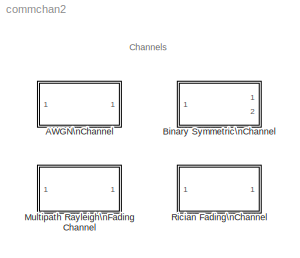
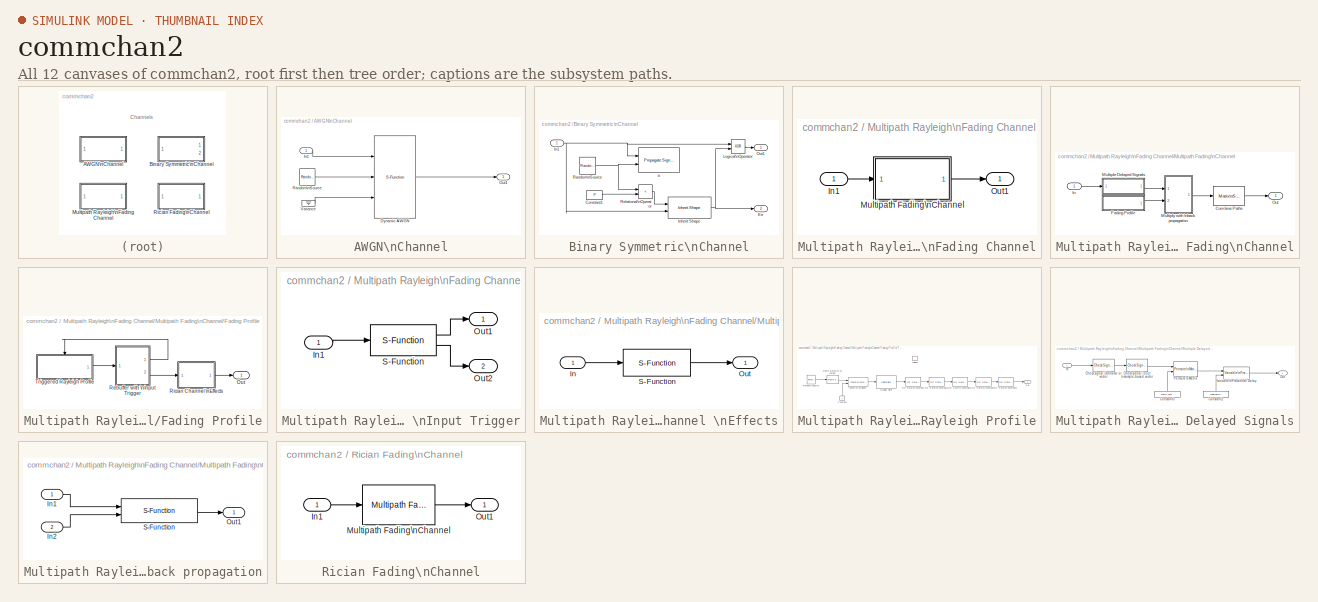
[diagram: thumbnail index - all 12 canvases of the model, root first then tree order]
MODEL commchan2
KIND library
BLOCK [SubSystem] AWGN\nChannel
  MaskCallbackString = |commblkawgnchan2(gcb,'Mode');|||||||
  MaskDescription = Add white Gaussian noise to the input signal. The input and output signals can be real or complex. This block supports multichannel input and output signals as well as frame-based processing.\n\nWhen using either of the variance modes with complex inputs, the variance values are equally divided among the real and imaginary components of the input signal.
  MaskDisplay = plot(-10,-10,110, 110,[05 15 10 10 05 10 18 14 13 7.5 13 41 44 47 50 53 57\n59 100-[13 7.5 13 14 18 10 5 10 10 15 5]],[70 70 70 85 92 85 79 82 90 88.5\n90 90 87 93 87 93 87 90 90 88.5 90 82 79 85 92 85 70 70 70]);\ndisp('AWGN');\nport_label('input',s.i1,s.i1s);\nport_label('input',s.i2,s.i2s);\nport_label('output',s.o1,s.o1s);\n
  MaskEnableString = on,on,on,on,off,on,on,on,off
  MaskHelp = helpview(commbhelp)
  MaskIconFrame = on
  MaskIconOpaque = on
  MaskIconRotate = none
  MaskIconUnits = autoscale
  MaskInitialization = [mode,s]=commblkawgnchan2(gcb,'init');\nif ~isempty(s.status) error(s.status); end
  MaskPromptString = Initial seed:|Mode:|Eb/No (dB):|Es/No (dB):|SNR (dB):|Number of bits per symbol:|Input signal power (watts):|Symbol period (s):|Variance:
  MaskSelfModifiable = on
  MaskStyleString = edit,popup(Signal to noise ratio  (Eb/No)|Signal to noise ratio  (Es/No)|Signal to noise ratio  (SNR)|Variance from mask|Variance from port),edit,edit,edit,edit,edit,edit,edit
  MaskTabNameString = ,,,,,,,,
  MaskToolTipString = on,on,on,on,on,on,on,on,on
  MaskTunableValueString = on,off,on,on,on,on,on,on,on
  MaskType = AWGN Channel
  MaskValueString = 67|Signal to noise ratio  (Eb/No)|10|10|10|1|1|1|1
  MaskVarAliasString = ,,,,,,,,
  MaskVariables = seed=@1;noiseMode=@2;EbNodB=@3;EsNodB=@4;SNRdB=@5;bitsPerSym=@6;Ps=@7;Tsym=@8;variance=@9;
  MaskVisibilityString = on,on,on,off,off,on,on,on,off
  MinAlgLoopOccurrences = off
  Ports = [1, 1]
  PropExecContextAcrossSSBoundary = on
  RTWSystemCode = Auto
  TreatAsAtomicUnit = off
BLOCK [S-Function] AWGN\nChannel/Dynamic AWGN
  FunctionName = scomawgnchan2
  MaskIconFrame = on
  MaskIconOpaque = on
  MaskIconRotate = none
  MaskIconUnits = autoscale
  Parameters = noiseMode, EbNodB, EsNodB, SNRdB, bitsPerSym, Ps, Tsym, variance
  Ports = [3, 1]
BLOCK [Inport] AWGN\nChannel/In1
  IconDisplay = Port number
  LatchInput = off
BLOCK [Outport] AWGN\nChannel/Out1
  BusOutputAsStruct = off
  IconDisplay = Port number
BLOCK [Reference] AWGN\nChannel/Random\nSource  REF=dspsrcs4/Random\nSource
  CltLength = 12
  DataType = Double
  Diagnostics = AllowInheritedTsInSrc
  Inherit = on
  Max = 1
  Mean = 0
  Min = 0
  NormMethod = Ziggurat
  OutComplex = Real
  Ports = [0, 1]
  RepMode = Specify seed
  SampFrame = 1
  SampMode = Discrete
  SampTime = 1
  Seed = seed
  SourceBlock = dspsrcs4/Random\nSource
  SourceType = Random Source
  SrcType = Gaussian
  Var = 1
BLOCK [Ground] AWGN\nChannel/Variance
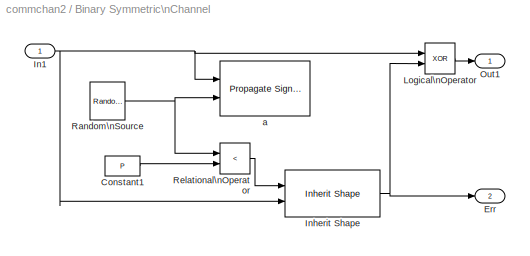
BLOCK [SubSystem] Binary Symmetric\nChannel
  MaskCallbackString = ||
  MaskDescription = Add binary errors to the input signal. The error probability can be a scalar or a vector with the same length as the input vector length.\n\nThe optional second output is the error vector.
  MaskDisplay = plot(0,0,100,100,[05 15 10 10 05 10 18 14 13 7.5 13 41 44 47 50 53 57 59 100-[13 7.5 13 14 18 10 5 10 10 15 5]],[70 70 70 85 92 85 79 82 90 88.5 90 90 87 93 87 93 87 90 90 88.5 90 82 79 85 92 85 70 70 70]);\ndisp('BSC')\nport_label('output',blk_icon.portnum,blk_icon.portlabel);
  MaskEnableString = on,on,on
  MaskHelp = helpview(commbhelp)
  MaskIconFrame = on
  MaskIconOpaque = on
  MaskIconRotate = none
  MaskIconUnits = autoscale
  MaskInitialization = blk_icon = commblkbschan(P,s);
  MaskPromptString = Error probability:|Initial seed:|Output error vector
  MaskSelfModifiable = on
  MaskStyleString = edit,edit,checkbox
  MaskTabNameString = ,,
  MaskToolTipString = on,on,on
  MaskTunableValueString = on,on,off
  MaskType = Binary Symmetric Channel
  MaskValueString = 0.05|71|on
  MaskVarAliasString = ,,
  MaskVariables = P=@1;s=@2;E=@3;
  MaskVisibilityString = on,on,on
  MinAlgLoopOccurrences = off
  Ports = [1, 2]
  PropExecContextAcrossSSBoundary = on
  RTWSystemCode = Auto
  TreatAsAtomicUnit = off
BLOCK [Constant] Binary Symmetric\nChannel/Constant1
  Value = P
BLOCK [Outport] Binary Symmetric\nChannel/Err
  BusOutputAsStruct = off
  IconDisplay = Port number
  Port = 2
BLOCK [Inport] Binary Symmetric\nChannel/In1
  IconDisplay = Port number
  LatchInput = off
BLOCK [Reference] Binary Symmetric\nChannel/Inherit Shape  REF=commblksprivate/Inherit Shape
  Ports = [2, 1]
  SourceBlock = commblksprivate/Inherit Shape
  SourceType = Inherit Shape
BLOCK [Logic] Binary Symmetric\nChannel/Logical\nOperator
  LogicDataType = float('double')
  Operator = XOR
  OutDataTypeMode = Specify via dialog
  Ports = [2, 1]
BLOCK [Outport] Binary Symmetric\nChannel/Out1
  BusOutputAsStruct = off
  IconDisplay = Port number
BLOCK [Reference] Binary Symmetric\nChannel/Random\nSource  REF=dspsrcs4/Random\nSource
  CltLength = 12
  DataType = Double
  Diagnostics = AllowInheritedTsInSrc
  Inherit = on
  Max = 1
  Mean = 0
  Min = 0
  NormMethod = Ziggurat
  OutComplex = Real
  Ports = [0, 1]
  RepMode = Specify seed
  SampFrame = 1
  SampMode = Discrete
  SampTime = 1
  Seed = s
  SourceBlock = dspsrcs4/Random\nSource
  SourceType = Random Source
  SrcType = Uniform
  Var = 1
BLOCK [RelationalOperator] Binary Symmetric\nChannel/Relational\nOperator
  LogicDataType = float('double')
  LogicOutDataTypeMode = Specify via dialog
  Operator = <
BLOCK [Reference] Binary Symmetric\nChannel/a  REF=commblksprivate/Propagate Signal\nAttributes
  Ports = [2]
  SourceBlock = commblksprivate/Propagate Signal\nAttributes
  SourceType = Propagate signal attributes
BLOCK [SubSystem] Multipath Rayleigh\nFading Channel
  MaskCallbackString = |||||
  MaskDescription = Multipath Rayleigh fading channel for complex baseband signals.\n\nMultiplies the input signal with samples of a Rayleigh distributed complex random process. The spectrum of the Rayleigh process is given by the Jakes PSD.\n\nThe number of paths equals the length of either the 'Delay vector' or 'Gain vector' parameters.
  MaskDisplay = plot(0,0,100,100,[05 15 10 10 05 10 18 14 13 7.5 13 41 44 47 50 53 57 59 100-[13 7.5 13 14 18 10 5 10 10 15 5]],[70 70 70 85 92 85 79 82 90 88.5 90 90 87 93 87 93 87 90 90 88.5 90 82 79 85 92 85 70 70 70]);\ndisp('Multipath\\nRayleigh Fading')
  MaskEnableString = on,on,on,on,on,on
  MaskHelp = helpview(commbhelp)
  MaskIconFrame = on
  MaskIconOpaque = on
  MaskIconRotate = none
  MaskIconUnits = autoscale
  MaskInitialization = commblkrayleighchan2(gcb);
  MaskPromptString = Maximum Doppler shift (Hz):|Sample time:|Delay vector (s):|Gain vector (dB):|Normalize gain vector to 0 dB overall gain|Initial seed:
  MaskSelfModifiable = on
  MaskStyleString = edit,edit,edit,edit,checkbox,edit
  MaskTabNameString = ,,,,,
  MaskToolTipString = on,on,on,on,on,on
  MaskTunableValueString = on,on,on,on,on,on
  MaskType = Multipath Rayleigh Fading Channel
  MaskValueString = 40|1e-6|[0 2e-6]|[0 -3]|on|73
  MaskVarAliasString = ,,,,,
  MaskVariables = Fd=@1;simTs=@2;delayVec=@3;gainVecdB=@4;normGain=@5;Seed=@6;
  MaskVisibilityString = on,on,on,on,on,on
  MinAlgLoopOccurrences = off
  Ports = [1, 1]
  PropExecContextAcrossSSBoundary = on
  RTWSystemCode = Auto
  TreatAsAtomicUnit = off
BLOCK [Inport] Multipath Rayleigh\nFading Channel/In1
  IconDisplay = Port number
  LatchInput = off
BLOCK [SubSystem] Multipath Rayleigh\nFading Channel/Multipath Fading\nChannel
  MaskCallbackString = |||||||
  MaskDescription = Multipath fading channel for complex baseband signals.\n\nMultiplies the input signal with samples of a complex random process. The spectrum of the random process is given by the Jakes PSD, where the Doppler frequency parameter determines the maximum Doppler frequency. The K-factor parameter specifies the linear ratio of power in the direct path to the diffuse power. \n\nThe number of paths equals...<+69ch>
  MaskDisplay = plot(0,0,100,100,[05 15 10 10 05 10 18 14 13 7.5 13 41 44 47 50 53 57 59 100-[13 7.5 13 14 18 10 5 10 10 15 5]],[70 70 70 85 92 85 79 82 90 88.5 90 90 87 93 87 93 87 90 90 88.5 90 82 79 85 92 85 70 70 70]);\ndisp('Multipath\\nFading')
  MaskEnableString = on,on,on,on,on,on,on,on
  MaskIconFrame = on
  MaskIconOpaque = on
  MaskIconRotate = none
  MaskIconUnits = autoscale
  MaskInitialization = [ecode,emsg,params] = commblkfadingchan2(gcb,Fd,LOSFd,K,simTs,delayVec,gainVecdB,normGain,Seed);\nif(ecode==1)\n    error(emsg);\nelseif(ecode==2)\n    warning(emsg);\nend;
  MaskPromptString = Doppler frequency (Hz):|Line-of-sight Doppler frequency (Hz):|K-factor:|Sample time (sec):|Delay vector (sec):|Gain vector (dB):|Normalize gain vector to 0 dB overall gain|Initial seed:
  MaskSelfModifiable = on
  MaskStyleString = edit,edit,edit,edit,edit,edit,checkbox,edit
  MaskTabNameString = ,,,,,,,
  MaskToolTipString = on,on,on,on,on,on,on,on
  MaskTunableValueString = on,on,on,on,on,on,on,on
  MaskType = Multipath Fading Channel
  MaskValueString = Fd|0|0|simTs|delayVec|gainVecdB|on|Seed
  MaskVarAliasString = ,,,,,,,
  MaskVariables = Fd=@1;LOSFd=@2;K=@3;simTs=@4;delayVec=@5;gainVecdB=@6;normGain=@7;Seed=@8;
  MaskVisibilityString = on,on,on,on,on,on,on,on
  MinAlgLoopOccurrences = off
  Ports = [1, 1]
  PropExecContextAcrossSSBoundary = on
  RTWSystemCode = Auto
  TreatAsAtomicUnit = off
BLOCK [Reference] Multipath Rayleigh\nFading Channel/Multipath Fading\nChannel/Combine Paths  REF=dspmtrx3/Matrix\nSum
  DialogController = dspDDGCreate
  DialogControllerArgs = DataTag0
  Dim = Rows
  Ports = [1, 1]
  SourceBlock = dspmtrx3/Matrix\nSum
  SourceType = Matrix Sum
  accumFracLength = 30
  accumMode = Inherit via internal rule
  accumWordLength = 32
  additionalParams = off
  allowOverrides = on
  outputFracLength = 15
  outputMode = Same as accumulator
  outputWordLength = 16
  overflowMode = off
  roundingMode = Floor
BLOCK [SubSystem] Multipath Rayleigh\nFading Channel/Multipath Fading\nChannel/Fading Profile
  MaskDisplay = disp('Fading\\nProfile')
  MaskIconFrame = on
  MaskIconOpaque = on
  MaskIconRotate = none
  MaskIconUnits = autoscale
  MinAlgLoopOccurrences = off
  Ports = [0, 1]
  PropExecContextAcrossSSBoundary = on
  RTWSystemCode = Auto
  TreatAsAtomicUnit = off
BLOCK [Outport] Multipath Rayleigh\nFading Channel/Multipath Fading\nChannel/Fading Profile/Out
  BusOutputAsStruct = off
  IconDisplay = Port number
BLOCK [SubSystem] Multipath Rayleigh\nFading Channel/Multipath Fading\nChannel/Fading Profile/Rebuffer with \nInput Trigger
  MaskCallbackString = ||commblktriggeredbuffer(gcb,'InputWidthMode');|||
  MaskDescription = This block inherits the input and output port widths and complexity and the output sample time.  The input must be from a function call subsystem.  The block generates a function call trigger on port 1 when ever data is required.  and outputs the buffered input data on port 2.
  MaskDisplay = disp('Rebuffer\\nwith trigger');\nport_label('input',s.i1,s.i1s);\nport_label('output',s.o1,s.o1s);\nport_label('output',s.o2,s.o2s);
  MaskEnableString = on,on,on,off,on,on
  MaskIconFrame = on
  MaskIconOpaque = on
  MaskIconRotate = none
  MaskIconUnits = autoscale
  MaskInitialization = s = commblktriggeredbuffer(gcb,'init',{});\n
  MaskPromptString = Start delay:|Number of channels:|Input width mode:|Input width (per channel):|Minimum input width (per channel):|Input width step size (per channel):
  MaskSelfModifiable = on
  MaskStyleString = edit,edit,popup(Inherit|Specify|Based on output width),edit,edit,edit
  MaskTabNameString = ,,,,,
  MaskToolTipString = on,on,on,on,on,on
  MaskTunableValueString = off,off,off,off,off,off
  MaskType = Rebuffer with Input Trigger
  MaskValueString = params.startDelay|params.nPaths|Based on output width|params.intFactor|params.intFactor|params.intFactor
  MaskVarAliasString = ,,,,,
  MaskVariables = startSample=@1;numChan=@2;inputWidthMode=@3;inputWidth=@4;inputWidthMin=@5;inputWidthStep=@6;
  MaskVisibilityString = on,on,on,off,on,on
  MinAlgLoopOccurrences = off
  Ports = [1, 2]
  PropExecContextAcrossSSBoundary = on
  RTWSystemCode = Auto
  TreatAsAtomicUnit = off
BLOCK [Inport] Multipath Rayleigh\nFading Channel/Multipath Fading\nChannel/Fading Profile/Rebuffer with \nInput Trigger/In1
  IconDisplay = Port number
  LatchInput = off
BLOCK [Outport] Multipath Rayleigh\nFading Channel/Multipath Fading\nChannel/Fading Profile/Rebuffer with \nInput Trigger/Out1
  BusOutputAsStruct = off
  IconDisplay = Port number
BLOCK [Outport] Multipath Rayleigh\nFading Channel/Multipath Fading\nChannel/Fading Profile/Rebuffer with \nInput Trigger/Out2
  BusOutputAsStruct = off
  IconDisplay = Port number
  Port = 2
BLOCK [S-Function] Multipath Rayleigh\nFading Channel/Multipath Fading\nChannel/Fading Profile/Rebuffer with \nInput Trigger/S-Function
  FunctionName = scomtrigbuff2
  Parameters = startSample, numChan, inputWidthMode, inputWidth, inputWidthMin, inputWidthStep
  Ports = [1, 2]
BLOCK [SubSystem] Multipath Rayleigh\nFading Channel/Multipath Fading\nChannel/Fading Profile/Rician Channel \nEffects
  MaskCallbackString = ||||
  MaskDescription = Add a complex phasor to the unity variance complex input to produce Rician channel effects.  The Doppler frequency parameter determines frequency of the complex phasor.
  MaskDisplay = disp('Rician\\nChannel')
  MaskEnableString = on,on,on,on,on
  MaskIconFrame = on
  MaskIconOpaque = on
  MaskIconRotate = none
  MaskIconUnits = autoscale
  MaskPromptString = Line-of-sight Doppler frequency (Hz):|K-factor|Required output power (Watts):|Sample time (s):|Number of channels:
  MaskStyleString = edit,edit,edit,edit,edit
  MaskTabNameString = ,,,,
  MaskToolTipString = on,on,on,on,on
  MaskTunableValueString = on,on,on,on,on
  MaskType = Ricean Channel Effects
  MaskValueString = params.LOSFd|params.K|params.gainVecLin|simTs|params.nPaths
  MaskVarAliasString = ,,,,
  MaskVariables = Doppler=@1;K=@2;opPower=@3;Ts=@4;numChan=@5;
  MaskVisibilityString = on,on,on,on,on
  MinAlgLoopOccurrences = off
  Ports = [1, 1]
  PropExecContextAcrossSSBoundary = on
  RTWSystemCode = Auto
  TreatAsAtomicUnit = off
BLOCK [Inport] Multipath Rayleigh\nFading Channel/Multipath Fading\nChannel/Fading Profile/Rician Channel \nEffects/In
  IconDisplay = Port number
  LatchInput = off
BLOCK [Outport] Multipath Rayleigh\nFading Channel/Multipath Fading\nChannel/Fading Profile/Rician Channel \nEffects/Out
  BusOutputAsStruct = off
  IconDisplay = Port number
BLOCK [S-Function] Multipath Rayleigh\nFading Channel/Multipath Fading\nChannel/Fading Profile/Rician Channel \nEffects/S-Function
  FunctionName = scomricianlos2
  Parameters = Doppler,K,opPower,Ts,numChan
  Ports = [1, 1]
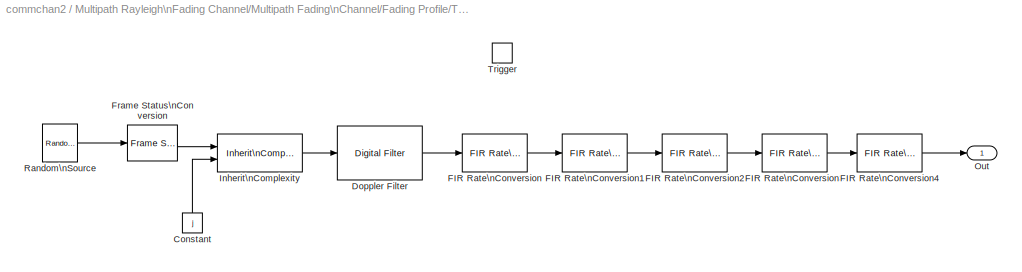
BLOCK [SubSystem] Multipath Rayleigh\nFading Channel/Multipath Fading\nChannel/Fading Profile/Triggered Rayleigh Profile
  MinAlgLoopOccurrences = off
  Ports = [0, 1, 0, 1]
  PropExecContextAcrossSSBoundary = on
  RTWSystemCode = Auto
  TreatAsAtomicUnit = on
BLOCK [Constant] Multipath Rayleigh\nFading Channel/Multipath Fading\nChannel/Fading Profile/Triggered Rayleigh Profile/Constant
  Value = j
BLOCK [Reference] Multipath Rayleigh\nFading Channel/Multipath Fading\nChannel/Fading Profile/Triggered Rayleigh Profile/Doppler Filter  REF=dsparch4/Digital Filter
  AllPoleFiltStruct = Direct form
  BiQuadCoeffs = params.dopplerSos
  CoeffSource = Specify via dialog
  DenCoeffs = [1 0.1]
  FIRFiltStruct = Direct form
  FiltPerSampPopup = One filter per frame
  IC = 0
  ICden = 0
  ICnum = 0
  IIRFiltStruct = Biquad direct form II transposed (SOS)
  LatticeCoeffs = [0.2 0.4]
  NumCoeffs = [1 2]
  Ports = [1, 1]
  SourceBlock = dsparch4/Digital Filter
  SourceType = Digital Filter
  TypePopup = IIR (poles & zeros)
  denIgnore = on
BLOCK [Reference] Multipath Rayleigh\nFading Channel/Multipath Fading\nChannel/Fading Profile/Triggered Rayleigh Profile/FIR Rate\nConversion  REF=dspmlti3/FIR Rate\nConversion
  L = params.interp1
  M = params.decim1
  Ports = [1, 1]
  SourceBlock = dspmlti3/FIR Rate\nConversion
  SourceType = FIR Rate Conversion
  h = params.rc1Num
BLOCK [Reference] Multipath Rayleigh\nFading Channel/Multipath Fading\nChannel/Fading Profile/Triggered Rayleigh Profile/FIR Rate\nConversion1  REF=dspmlti3/FIR Rate\nConversion
  L = params.interp2
  M = params.decim2
  Ports = [1, 1]
  SourceBlock = dspmlti3/FIR Rate\nConversion
  SourceType = FIR Rate Conversion
  h = params.rc2Num
BLOCK [Reference] Multipath Rayleigh\nFading Channel/Multipath Fading\nChannel/Fading Profile/Triggered Rayleigh Profile/FIR Rate\nConversion2  REF=dspmlti3/FIR Rate\nConversion
  L = params.interp3
  M = params.decim3
  Ports = [1, 1]
  SourceBlock = dspmlti3/FIR Rate\nConversion
  SourceType = FIR Rate Conversion
  h = params.rc3Num
BLOCK [Reference] Multipath Rayleigh\nFading Channel/Multipath Fading\nChannel/Fading Profile/Triggered Rayleigh Profile/FIR Rate\nConversion3  REF=dspmlti3/FIR Rate\nConversion
  L = params.interp4
  M = params.decim4
  Ports = [1, 1]
  SourceBlock = dspmlti3/FIR Rate\nConversion
  SourceType = FIR Rate Conversion
  h = params.rc4Num
BLOCK [Reference] Multipath Rayleigh\nFading Channel/Multipath Fading\nChannel/Fading Profile/Triggered Rayleigh Profile/FIR Rate\nConversion4  REF=dspmlti3/FIR Rate\nConversion
  L = params.interp5
  M = params.decim5
  Ports = [1, 1]
  SourceBlock = dspmlti3/FIR Rate\nConversion
  SourceType = FIR Rate Conversion
  h = params.rc5Num
BLOCK [Reference] Multipath Rayleigh\nFading Channel/Multipath Fading\nChannel/Fading Profile/Triggered Rayleigh Profile/Frame Status\nConversion  REF=dspsigattribs/Frame Status\nConversion
  Ports = [1, 1]
  SourceBlock = dspsigattribs/Frame Status\nConversion
  SourceType = Frame Status Conversion
  growRefPort = off
  outframe = Frame-based
BLOCK [Reference] Multipath Rayleigh\nFading Channel/Multipath Fading\nChannel/Fading Profile/Triggered Rayleigh Profile/Inherit\nComplexity  REF=dspsigattribs/Inherit\nComplexity
  Ports = [2, 1]
  SourceBlock = dspsigattribs/Inherit\nComplexity
  SourceType = Inherit Complexity
BLOCK [Outport] Multipath Rayleigh\nFading Channel/Multipath Fading\nChannel/Fading Profile/Triggered Rayleigh Profile/Out
  BusOutputAsStruct = off
  IconDisplay = Port number
BLOCK [Reference] Multipath Rayleigh\nFading Channel/Multipath Fading\nChannel/Fading Profile/Triggered Rayleigh Profile/Random\nSource  REF=dspsrcs4/Random\nSource
  CltLength = 12
  DataType = Double
  Diagnostics = AllowInheritedTsInSrc
  Inherit = on
  Max = 1
  Mean = 0
  Min = 0
  NormMethod = Ziggurat
  OutComplex = Real
  Ports = [0, 1]
  RepMode = Specify seed
  SampFrame = 1
  SampMode = Discrete
  SampTime = 1
  Seed = params.Seed
  SourceBlock = dspsrcs4/Random\nSource
  SourceType = Random Source
  SrcType = Gaussian
  UserData = DataTag1
  UserDataPersistent = on
  Var = 1
BLOCK [TriggerPort] Multipath Rayleigh\nFading Channel/Multipath Fading\nChannel/Fading Profile/Triggered Rayleigh Profile/Trigger
  Ports = []
  TriggerType = function-call
BLOCK [Inport] Multipath Rayleigh\nFading Channel/Multipath Fading\nChannel/In
  IconDisplay = Port number
  LatchInput = off
BLOCK [SubSystem] Multipath Rayleigh\nFading Channel/Multipath Fading\nChannel/Multiple Delayed Signals
  MaskCallbackString = |
  MaskDisplay = disp('Multiple\\ndelayed signals');
  MaskEnableString = on,on
  MaskIconFrame = on
  MaskIconOpaque = on
  MaskIconRotate = none
  MaskIconUnits = autoscale
  MaskInitialization = nPaths = length(delayVector);\nmaxDelay = ceil(max(delayVector))+1;
  MaskPromptString = Path delay vector:|Sample time (sec):
  MaskStyleString = edit,edit
  MaskTabNameString = ,
  MaskToolTipString = on,on
  MaskTunableValueString = on,on
  MaskType = Multiple Delayed Signals
  MaskValueString = params.sampleDelayVec|simTs
  MaskVarAliasString = ,
  MaskVariables = delayVector=@1;Ts=@2;
  MaskVisibilityString = on,on
  MinAlgLoopOccurrences = off
  Ports = [1, 1]
  PropExecContextAcrossSSBoundary = on
  RTWSystemCode = Auto
  TreatAsAtomicUnit = off
BLOCK [Reference] Multipath Rayleigh\nFading Channel/Multipath Fading\nChannel/Multiple Delayed Signals/Check signal is not \nsample-based vector  REF=dspsigattribs/Check Signal\nAttributes
  Complexity = Ignore
  DatatypeCheckMethod = Ignore
  DatatypeGeneral = Boolean
  Dimensions = Scalar (1-D or 2-D)
  DimsCheckMethod = Is not...
  DtypeFixedSpecific = Any fixed-point
  DtypeFloatSpecific = Any floating-point
  DtypeIntSpecific = Any integer
  Frame = Sample-based
  Ports = [1, 1]
  SampleMode = Ignore
  ShowPortLabels = on
  SigAttribCheckMethod = Matches attributes exactly
  SourceBlock = dspsigattribs/Check Signal\nAttributes
  SourceType = Check Signal Attributes
BLOCK [Reference] Multipath Rayleigh\nFading Channel/Multipath Fading\nChannel/Multiple Delayed Signals/Check signal is\nframe or vector  REF=dspsigattribs/Check Signal\nAttributes
  Complexity = Ignore
  DatatypeCheckMethod = Ignore
  DatatypeGeneral = Boolean
  Dimensions = Column vector (2-D) or scalar
  DimsCheckMethod = Is...
  DtypeFixedSpecific = Any fixed-point
  DtypeFloatSpecific = Any floating-point
  DtypeIntSpecific = Any integer
  Frame = Ignore
  Ports = [1, 1]
  SampleMode = Ignore
  ShowPortLabels = on
  SigAttribCheckMethod = Does not match attributes exactly
  SourceBlock = dspsigattribs/Check Signal\nAttributes
  SourceType = Check Signal Attributes
BLOCK [Constant] Multipath Rayleigh\nFading Channel/Multipath Fading\nChannel/Multiple Delayed Signals/Constant2
  Value = [delayVector(:)]'
  VectorParams1D = off
BLOCK [Constant] Multipath Rayleigh\nFading Channel/Multipath Fading\nChannel/Multiple Delayed Signals/Constant3
  Value = ones(1,nPaths)
  VectorParams1D = off
BLOCK [Inport] Multipath Rayleigh\nFading Channel/Multipath Fading\nChannel/Multiple Delayed Signals/In
  IconDisplay = Port number
  LatchInput = off
BLOCK [Outport] Multipath Rayleigh\nFading Channel/Multipath Fading\nChannel/Multiple Delayed Signals/Out
  BusOutputAsStruct = off
  IconDisplay = Port number
BLOCK [Reference] Multipath Rayleigh\nFading Channel/Multipath Fading\nChannel/Multiple Delayed Signals/Permute\nMatrix  REF=dspmtrx3/Permute\nMatrix
  Ports = [2, 1]
  SourceBlock = dspmtrx3/Permute\nMatrix
  SourceType = Permute Matrix
  ZeroOneIdxMode = One-based
  checkDims = off
  errmode = Clip Index
  mode = Columns
BLOCK [Reference] Multipath Rayleigh\nFading Channel/Multipath Fading\nChannel/Multiple Delayed Signals/Variable\nFractional Delay  REF=dspsigops/Variable\nFractional Delay
  L = 6
  Ports = [2, 1]
  R = 10
  SourceBlock = dspsigops/Variable\nFractional Delay
  SourceType = Variable Fractional Delay
  alpha = 1
  dmax = maxDelay
  ic = 0
  mode = FIR Interpolation
BLOCK [SubSystem] Multipath Rayleigh\nFading Channel/Multipath Fading\nChannel/Multiply with \nback propagation
  MaskCallbackString = ||
  MaskDescription = Perform multiplication of the two input signals.  \n\nThe width and complexity of the output and the port not targeted for propagation must be identical. The width and complexity of the port targeted for propagation is set to that of the other input.\n\nThe block sample time is the product of the number of samples per frame and the sample time parameter.
  MaskDisplay = disp('Multiply\\nwith prop');
  MaskEnableString = on,on,on
  MaskIconFrame = on
  MaskIconOpaque = on
  MaskIconRotate = none
  MaskIconUnits = autoscale
  MaskPromptString = Propagation target:|Sample time:|Number of channels:
  MaskStyleString = popup(Input 1|Input 2),edit,edit
  MaskTabNameString = ,,
  MaskToolTipString = on,on,on
  MaskTunableValueString = on,on,on
  MaskType = Multiply with back propagation
  MaskValueString = Input 2|simTs|params.nPaths
  MaskVarAliasString = ,,
  MaskVariables = propTarget=@1;Ts=@2;numChan=@3;
  MaskVisibilityString = on,on,on
  MinAlgLoopOccurrences = off
  Ports = [2, 1]
  PropExecContextAcrossSSBoundary = on
  RTWSystemCode = Auto
  TreatAsAtomicUnit = off
BLOCK [Inport] Multipath Rayleigh\nFading Channel/Multipath Fading\nChannel/Multiply with \nback propagation/In1
  IconDisplay = Port number
  LatchInput = off
BLOCK [Inport] Multipath Rayleigh\nFading Channel/Multipath Fading\nChannel/Multiply with \nback propagation/In2
  IconDisplay = Port number
  LatchInput = off
  Port = 2
BLOCK [Outport] Multipath Rayleigh\nFading Channel/Multipath Fading\nChannel/Multiply with \nback propagation/Out1
  BusOutputAsStruct = off
  IconDisplay = Port number
BLOCK [S-Function] Multipath Rayleigh\nFading Channel/Multipath Fading\nChannel/Multiply with \nback propagation/S-Function
  FunctionName = scommultwithprop2
  Parameters = propTarget, Ts, numChan
  Ports = [2, 1]
BLOCK [Outport] Multipath Rayleigh\nFading Channel/Multipath Fading\nChannel/Out
  BusOutputAsStruct = off
  IconDisplay = Port number
BLOCK [Outport] Multipath Rayleigh\nFading Channel/Out1
  BusOutputAsStruct = off
  IconDisplay = Port number
BLOCK [SubSystem] Rician Fading\nChannel
  MaskCallbackString = |||||
  MaskDescription = Rician fading channel for complex baseband signals.\n\nMultiplies the input signal with samples of a Rician distributed complex random process. The K-factor parameter specifies the linear ratio of power in the direct path to the diffuse power.  The spectrum of the Rician process is given by the Jakes PSD.
  MaskDisplay = plot(0,0,100,100,[05 15 10 10 05 10 18 14 13 7.5 13 41 44 47 50 53 57 59 100-[13 7.5 13 14 18 10 5 10 10 15 5]],[70 70 70 85 92 85 79 82 90 88.5 90 90 87 93 87 93 87 90 90 88.5 90 82 79 85 92 85 70 70 70]);\ndisp('Rician\\nFading')
  MaskEnableString = on,on,on,on,on,on
  MaskHelp = helpview(commbhelp)
  MaskIconFrame = on
  MaskIconOpaque = on
  MaskIconRotate = none
  MaskIconUnits = autoscale
  MaskInitialization = commblkricianchan2(gcb);\n
  MaskPromptString = K-factor:|Maximum Doppler shift (Hz):|Sample time:|Delay (s):|Gain (dB):|Initial seed:
  MaskSelfModifiable = on
  MaskStyleString = edit,edit,edit,edit,edit,edit
  MaskTabNameString = ,,,,,
  MaskToolTipString = on,on,on,on,on,on
  MaskTunableValueString = on,on,on,on,on,on
  MaskType = Rician Fading Channel
  MaskValueString = 1|40|1e-6|0|0|79
  MaskVarAliasString = ,,,,,
  MaskVariables = K=@1;Fd=@2;simTs=@3;delayVec=@4;gainVecdB=@5;Seed=@6;
  MaskVisibilityString = on,on,on,on,on,on
  MinAlgLoopOccurrences = off
  Ports = [1, 1]
  PropExecContextAcrossSSBoundary = on
  RTWSystemCode = Auto
  TreatAsAtomicUnit = off
BLOCK [Inport] Rician Fading\nChannel/In1
  IconDisplay = Port number
  LatchInput = off
BLOCK [Reference] Rician Fading\nChannel/Multipath Fading\nChannel  REF=commchan2/Multipath Rayleigh\nFading Channel/Multipath Fading\nChannel
  Fd = Fd
  K = K
  LOSFd = 0
  Ports = [1, 1]
  Seed = Seed
  ShowPortLabels = on
  SourceBlock = commchan2/Multipath Rayleigh\nFading Channel/Multipath Fading\nChannel
  SourceType = Multipath Fading Channel
  delayVec = delayVec
  gainVecdB = gainVecdB
  normGain = off
  simTs = simTs
BLOCK [Outport] Rician Fading\nChannel/Out1
  BusOutputAsStruct = off
  IconDisplay = Port number
ANNOTATION (root): Channels
LINE AWGN\nChannel/Dynamic AWGN:1 -> AWGN\nChannel/Out1:1
LINE AWGN\nChannel/In1:1 -> AWGN\nChannel/Dynamic AWGN:1
LINE AWGN\nChannel/Random\nSource:1 -> AWGN\nChannel/Dynamic AWGN:2
LINE AWGN\nChannel/Variance:1 -> AWGN\nChannel/Dynamic AWGN:3
LINE Binary Symmetric\nChannel/Constant1:1 -> Binary Symmetric\nChannel/Relational\nOperator:2
NET Binary Symmetric\nChannel/In1:1 -> Binary Symmetric\nChannel/Inherit Shape:2, Binary Symmetric\nChannel/Logical\nOperator:1, Binary Symmetric\nChannel/a:1
NET Binary Symmetric\nChannel/Inherit Shape:1 -> Binary Symmetric\nChannel/Err:1, Binary Symmetric\nChannel/Logical\nOperator:2
LINE Binary Symmetric\nChannel/Logical\nOperator:1 -> Binary Symmetric\nChannel/Out1:1
NET Binary Symmetric\nChannel/Random\nSource:1 -> Binary Symmetric\nChannel/Relational\nOperator:1, Binary Symmetric\nChannel/a:2
LINE Binary Symmetric\nChannel/Relational\nOperator:1 -> Binary Symmetric\nChannel/Inherit Shape:1
LINE Multipath Rayleigh\nFading Channel/In1:1 -> Multipath Rayleigh\nFading Channel/Multipath Fading\nChannel:1
LINE Multipath Rayleigh\nFading Channel/Multipath Fading\nChannel/Combine Paths:1 -> Multipath Rayleigh\nFading Channel/Multipath Fading\nChannel/Out:1
LINE Multipath Rayleigh\nFading Channel/Multipath Fading\nChannel/Fading Profile/Rebuffer with \nInput Trigger/In1:1 -> Multipath Rayleigh\nFading Channel/Multipath Fading\nChannel/Fading Profile/Rebuffer with \nInput Trigger/S-Function:1
LINE Multipath Rayleigh\nFading Channel/Multipath Fading\nChannel/Fading Profile/Rebuffer with \nInput Trigger/S-Function:1 -> Multipath Rayleigh\nFading Channel/Multipath Fading\nChannel/Fading Profile/Rebuffer with \nInput Trigger/Out1:1
LINE Multipath Rayleigh\nFading Channel/Multipath Fading\nChannel/Fading Profile/Rebuffer with \nInput Trigger/S-Function:2 -> Multipath Rayleigh\nFading Channel/Multipath Fading\nChannel/Fading Profile/Rebuffer with \nInput Trigger/Out2:1
LINE Multipath Rayleigh\nFading Channel/Multipath Fading\nChannel/Fading Profile/Rebuffer with \nInput Trigger:1 -> Multipath Rayleigh\nFading Channel/Multipath Fading\nChannel/Fading Profile/Triggered Rayleigh Profile:trigger
LINE Multipath Rayleigh\nFading Channel/Multipath Fading\nChannel/Fading Profile/Rebuffer with \nInput Trigger:2 -> Multipath Rayleigh\nFading Channel/Multipath Fading\nChannel/Fading Profile/Rician Channel \nEffects:1
LINE Multipath Rayleigh\nFading Channel/Multipath Fading\nChannel/Fading Profile/Rician Channel \nEffects/In:1 -> Multipath Rayleigh\nFading Channel/Multipath Fading\nChannel/Fading Profile/Rician Channel \nEffects/S-Function:1
LINE Multipath Rayleigh\nFading Channel/Multipath Fading\nChannel/Fading Profile/Rician Channel \nEffects/S-Function:1 -> Multipath Rayleigh\nFading Channel/Multipath Fading\nChannel/Fading Profile/Rician Channel \nEffects/Out:1
LINE Multipath Rayleigh\nFading Channel/Multipath Fading\nChannel/Fading Profile/Rician Channel \nEffects:1 -> Multipath Rayleigh\nFading Channel/Multipath Fading\nChannel/Fading Profile/Out:1
LINE Multipath Rayleigh\nFading Channel/Multipath Fading\nChannel/Fading Profile/Triggered Rayleigh Profile/Constant:1 -> Multipath Rayleigh\nFading Channel/Multipath Fading\nChannel/Fading Profile/Triggered Rayleigh Profile/Inherit\nComplexity:2
LINE Multipath Rayleigh\nFading Channel/Multipath Fading\nChannel/Fading Profile/Triggered Rayleigh Profile/Doppler Filter:1 -> Multipath Rayleigh\nFading Channel/Multipath Fading\nChannel/Fading Profile/Triggered Rayleigh Profile/FIR Rate\nConversion:1
LINE Multipath Rayleigh\nFading Channel/Multipath Fading\nChannel/Fading Profile/Triggered Rayleigh Profile/FIR Rate\nConversion1:1 -> Multipath Rayleigh\nFading Channel/Multipath Fading\nChannel/Fading Profile/Triggered Rayleigh Profile/FIR Rate\nConversion2:1
LINE Multipath Rayleigh\nFading Channel/Multipath Fading\nChannel/Fading Profile/Triggered Rayleigh Profile/FIR Rate\nConversion2:1 -> Multipath Rayleigh\nFading Channel/Multipath Fading\nChannel/Fading Profile/Triggered Rayleigh Profile/FIR Rate\nConversion3:1
LINE Multipath Rayleigh\nFading Channel/Multipath Fading\nChannel/Fading Profile/Triggered Rayleigh Profile/FIR Rate\nConversion3:1 -> Multipath Rayleigh\nFading Channel/Multipath Fading\nChannel/Fading Profile/Triggered Rayleigh Profile/FIR Rate\nConversion4:1
LINE Multipath Rayleigh\nFading Channel/Multipath Fading\nChannel/Fading Profile/Triggered Rayleigh Profile/FIR Rate\nConversion4:1 -> Multipath Rayleigh\nFading Channel/Multipath Fading\nChannel/Fading Profile/Triggered Rayleigh Profile/Out:1
LINE Multipath Rayleigh\nFading Channel/Multipath Fading\nChannel/Fading Profile/Triggered Rayleigh Profile/FIR Rate\nConversion:1 -> Multipath Rayleigh\nFading Channel/Multipath Fading\nChannel/Fading Profile/Triggered Rayleigh Profile/FIR Rate\nConversion1:1
LINE Multipath Rayleigh\nFading Channel/Multipath Fading\nChannel/Fading Profile/Triggered Rayleigh Profile/Frame Status\nConversion:1 -> Multipath Rayleigh\nFading Channel/Multipath Fading\nChannel/Fading Profile/Triggered Rayleigh Profile/Inherit\nComplexity:1
LINE Multipath Rayleigh\nFading Channel/Multipath Fading\nChannel/Fading Profile/Triggered Rayleigh Profile/Inherit\nComplexity:1 -> Multipath Rayleigh\nFading Channel/Multipath Fading\nChannel/Fading Profile/Triggered Rayleigh Profile/Doppler Filter:1
LINE Multipath Rayleigh\nFading Channel/Multipath Fading\nChannel/Fading Profile/Triggered Rayleigh Profile/Random\nSource:1 -> Multipath Rayleigh\nFading Channel/Multipath Fading\nChannel/Fading Profile/Triggered Rayleigh Profile/Frame Status\nConversion:1
LINE Multipath Rayleigh\nFading Channel/Multipath Fading\nChannel/Fading Profile/Triggered Rayleigh Profile:1 -> Multipath Rayleigh\nFading Channel/Multipath Fading\nChannel/Fading Profile/Rebuffer with \nInput Trigger:1
LINE Multipath Rayleigh\nFading Channel/Multipath Fading\nChannel/Fading Profile:1 -> Multipath Rayleigh\nFading Channel/Multipath Fading\nChannel/Multiply with \nback propagation:2
LINE Multipath Rayleigh\nFading Channel/Multipath Fading\nChannel/In:1 -> Multipath Rayleigh\nFading Channel/Multipath Fading\nChannel/Multiple Delayed Signals:1
LINE Multipath Rayleigh\nFading Channel/Multipath Fading\nChannel/Multiple Delayed Signals/Check signal is not \nsample-based vector:1 -> Multipath Rayleigh\nFading Channel/Multipath Fading\nChannel/Multiple Delayed Signals/Permute\nMatrix:1
LINE Multipath Rayleigh\nFading Channel/Multipath Fading\nChannel/Multiple Delayed Signals/Check signal is\nframe or vector:1 -> Multipath Rayleigh\nFading Channel/Multipath Fading\nChannel/Multiple Delayed Signals/Check signal is not \nsample-based vector:1
LINE Multipath Rayleigh\nFading Channel/Multipath Fading\nChannel/Multiple Delayed Signals/Constant2:1 -> Multipath Rayleigh\nFading Channel/Multipath Fading\nChannel/Multiple Delayed Signals/Variable\nFractional Delay:2
LINE Multipath Rayleigh\nFading Channel/Multipath Fading\nChannel/Multiple Delayed Signals/Constant3:1 -> Multipath Rayleigh\nFading Channel/Multipath Fading\nChannel/Multiple Delayed Signals/Permute\nMatrix:2
LINE Multipath Rayleigh\nFading Channel/Multipath Fading\nChannel/Multiple Delayed Signals/In:1 -> Multipath Rayleigh\nFading Channel/Multipath Fading\nChannel/Multiple Delayed Signals/Check signal is\nframe or vector:1
LINE Multipath Rayleigh\nFading Channel/Multipath Fading\nChannel/Multiple Delayed Signals/Permute\nMatrix:1 -> Multipath Rayleigh\nFading Channel/Multipath Fading\nChannel/Multiple Delayed Signals/Variable\nFractional Delay:1
LINE Multipath Rayleigh\nFading Channel/Multipath Fading\nChannel/Multiple Delayed Signals/Variable\nFractional Delay:1 -> Multipath Rayleigh\nFading Channel/Multipath Fading\nChannel/Multiple Delayed Signals/Out:1
LINE Multipath Rayleigh\nFading Channel/Multipath Fading\nChannel/Multiple Delayed Signals:1 -> Multipath Rayleigh\nFading Channel/Multipath Fading\nChannel/Multiply with \nback propagation:1
LINE Multipath Rayleigh\nFading Channel/Multipath Fading\nChannel/Multiply with \nback propagation/In1:1 -> Multipath Rayleigh\nFading Channel/Multipath Fading\nChannel/Multiply with \nback propagation/S-Function:1
LINE Multipath Rayleigh\nFading Channel/Multipath Fading\nChannel/Multiply with \nback propagation/In2:1 -> Multipath Rayleigh\nFading Channel/Multipath Fading\nChannel/Multiply with \nback propagation/S-Function:2
LINE Multipath Rayleigh\nFading Channel/Multipath Fading\nChannel/Multiply with \nback propagation/S-Function:1 -> Multipath Rayleigh\nFading Channel/Multipath Fading\nChannel/Multiply with \nback propagation/Out1:1
LINE Multipath Rayleigh\nFading Channel/Multipath Fading\nChannel/Multiply with \nback propagation:1 -> Multipath Rayleigh\nFading Channel/Multipath Fading\nChannel/Combine Paths:1
LINE Multipath Rayleigh\nFading Channel/Multipath Fading\nChannel:1 -> Multipath Rayleigh\nFading Channel/Out1:1
LINE Rician Fading\nChannel/In1:1 -> Rician Fading\nChannel/Multipath Fading\nChannel:1
LINE Rician Fading\nChannel/Multipath Fading\nChannel:1 -> Rician Fading\nChannel/Out1:1
note: NET lines group one-source signal fan-out (src -> all destinations, sorted); 1:1 wires keep LINE
